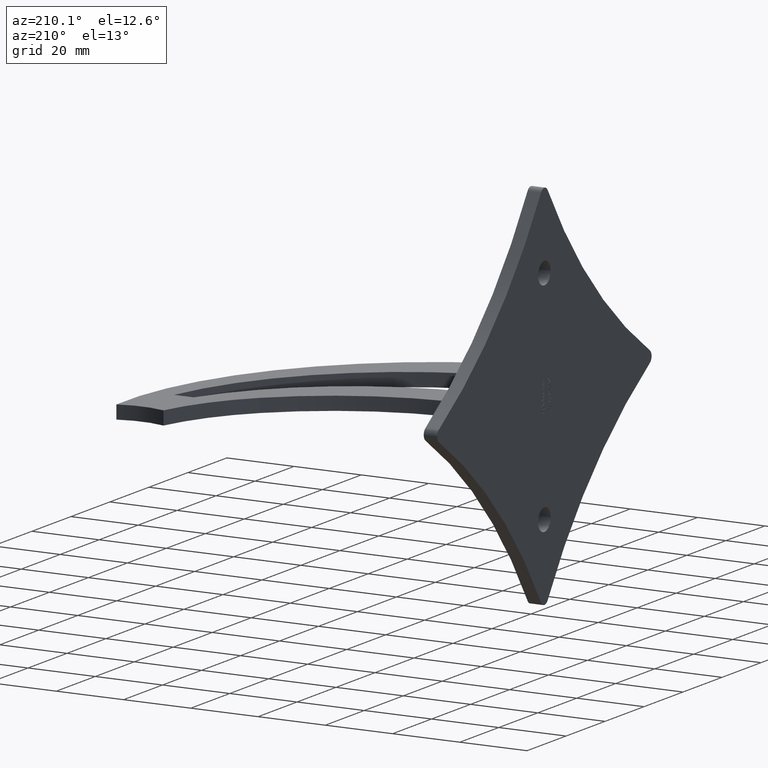
[diagram: clean part render]
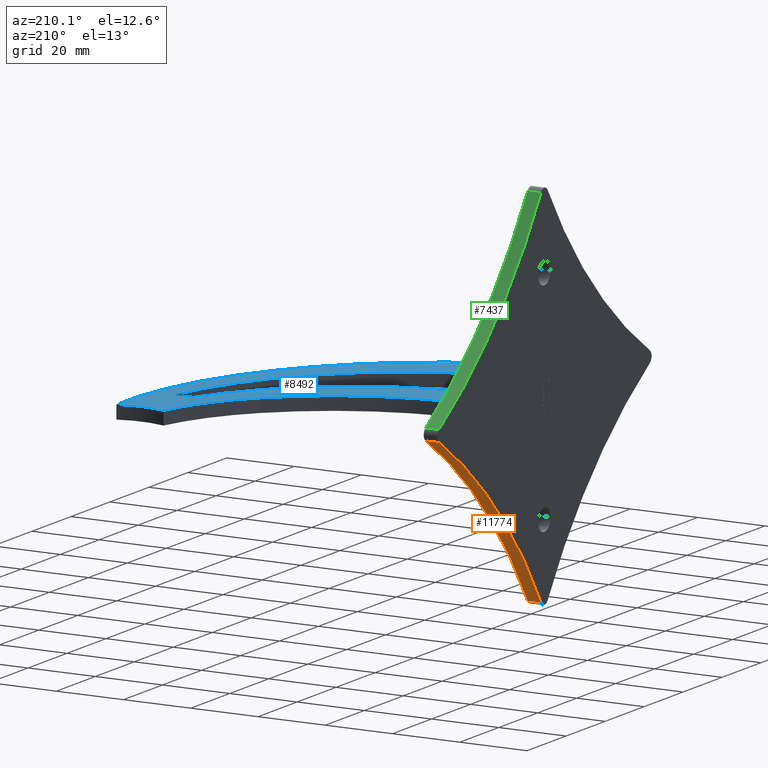
[diagram: same view with three faces highlighted in distinct colors, each labeled with its STEP entity id]
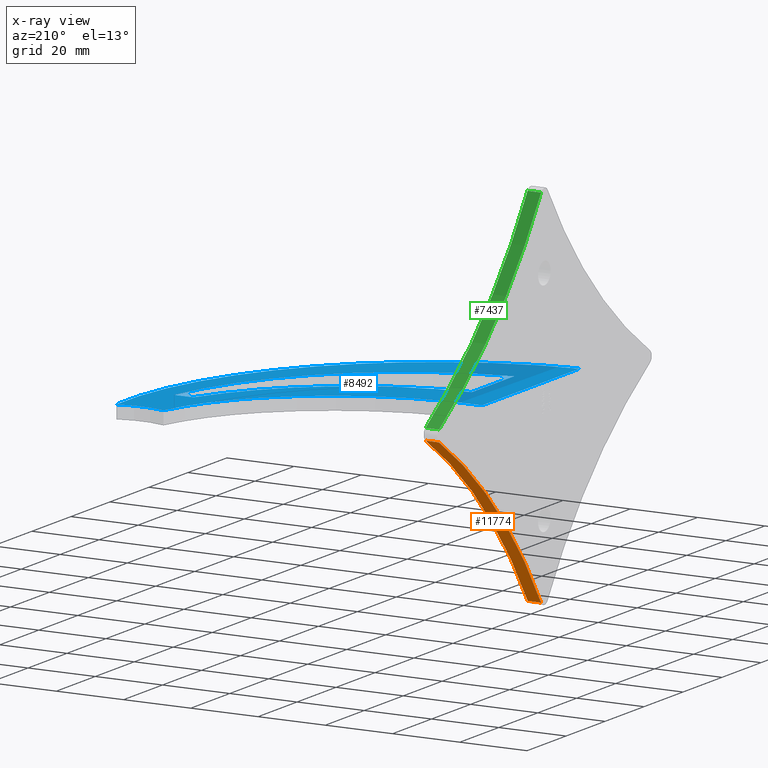
[diagram: x-ray of the same camera — body ghosted, the three highlighted faces saturated]
A machine part, auxiliary view with three faces highlighted in distinct colors.
The next image is the same camera in x-ray (body ghosted, the three faces saturated) — at least one of them is partly hidden behind the body in this view.
Their STEP definitions:

[orange] entity #11774 — the highlighted cylindrical surface (partial cylindrical patch) has radius 160 mm, axis along (1, -0, -0).
#765 = ORIENTED_EDGE ( 'NONE', *, *, #5999, .T. ) ;
#916 = DIRECTION ( 'NONE',  ( 1.000000000000000000, -7.993605777301128353E-14, -0.000000000000000000 ) ) ;
#932 = DIRECTION ( 'NONE',  ( 7.993605777301129615E-14, 1.000000000000000000, 0.000000000000000000 ) ) ;
#959 = VECTOR ( 'NONE', #10186, 1000.000000000000000 ) ;
#985 = CARTESIAN_POINT ( 'NONE',  ( -3.999999999999864109, 1.703011507301944727, -54.04869051964732307 ) ) ;
#1049 = VERTEX_POINT ( 'NONE', #10015 ) ;
#1844 = DIRECTION ( 'NONE',  ( 7.993822617735624192E-14, 1.000000000000000000, 0.000000000000000000 ) ) ;
#2671 = CARTESIAN_POINT ( 'NONE',  ( 1.102669412509715990E-11, 137.9439320914333109, -137.9439320914332825 ) ) ;
#2919 = FACE_OUTER_BOUND ( 'NONE', #7805, .T. ) ;
#3168 = AXIS2_PLACEMENT_3D ( 'NONE', #7307, #7387, #1844 ) ;
#3527 = CARTESIAN_POINT ( 'NONE',  ( -3.999999999988973265, 137.9439320914336520, -137.9439320914332825 ) ) ;
#3616 = CARTESIAN_POINT ( 'NONE',  ( 1.361320262357657079E-13, 1.703011507301624983, -54.04869051964732307 ) ) ;
#3651 = VERTEX_POINT ( 'NONE', #3616 ) ;
#3871 = AXIS2_PLACEMENT_3D ( 'NONE', #3527, #916, #7288 ) ;
#4072 = CIRCLE ( 'NONE', #4248, 160.0000000000000000 ) ;
#4248 = AXIS2_PLACEMENT_3D ( 'NONE', #2671, #6248, #932 ) ;
#4780 = CYLINDRICAL_SURFACE ( 'NONE', #3168, 160.0000000000000000 ) ;
#4799 = LINE ( 'NONE', #10934, #5643 ) ;
#5604 = DIRECTION ( 'NONE',  ( 1.000000000000000000, -7.993605777301128353E-14, -0.000000000000000000 ) ) ;
#5643 = VECTOR ( 'NONE', #5604, 1000.000000000000000 ) ;
#5999 = EDGE_CURVE ( 'NONE', #11205, #7626, #4799, .T. ) ;
#6000 = ORIENTED_EDGE ( 'NONE', *, *, #10456, .F. ) ;
#6248 = DIRECTION ( 'NONE',  ( 1.000000000000000000, -7.993605777301128353E-14, -0.000000000000000000 ) ) ;
#7120 = CARTESIAN_POINT ( 'NONE',  ( -3.999999999995679900, 54.04869051964761439, -1.703011507301621652 ) ) ;
#7288 = DIRECTION ( 'NONE',  ( 7.993822617735624192E-14, 1.000000000000000000, 0.000000000000000000 ) ) ;
#7307 = CARTESIAN_POINT ( 'NONE',  ( -3.999999999988973265, 137.9439320914336520, -137.9439320914332825 ) ) ;
#7387 = DIRECTION ( 'NONE',  ( 1.000000000000000000, -7.993605777301128353E-14, -0.000000000000000000 ) ) ;
#7626 = VERTEX_POINT ( 'NONE', #11249 ) ;
#7757 = ORIENTED_EDGE ( 'NONE', *, *, #10804, .T. ) ;
#7805 = EDGE_LOOP ( 'NONE', ( #7757, #6000, #10035, #765 ) ) ;
#9241 = EDGE_CURVE ( 'NONE', #11205, #1049, #9643, .T. ) ;
#9643 = CIRCLE ( 'NONE', #3871, 160.0000000000000000 ) ;
#10015 = CARTESIAN_POINT ( 'NONE',  ( -3.999999999999864109, 1.703011507301944727, -54.04869051964732307 ) ) ;
#10035 = ORIENTED_EDGE ( 'NONE', *, *, #9241, .F. ) ;
#10186 = DIRECTION ( 'NONE',  ( 1.000000000000000000, -7.993605777301128353E-14, -0.000000000000000000 ) ) ;
#10456 = EDGE_CURVE ( 'NONE', #1049, #3651, #11086, .T. ) ;
#10804 = EDGE_CURVE ( 'NONE', #7626, #3651, #4072, .T. ) ;
#10934 = CARTESIAN_POINT ( 'NONE',  ( -3.999999999995679900, 54.04869051964761439, -1.703011507301621652 ) ) ;
#11086 = LINE ( 'NONE', #985, #959 ) ;
#11205 = VERTEX_POINT ( 'NONE', #7120 ) ;
#11249 = CARTESIAN_POINT ( 'NONE',  ( 4.320439247934134280E-12, 54.04869051964729465, -1.703011507301621652 ) ) ;
#11774 = ADVANCED_FACE ( 'NONE', ( #2919 ), #4780, .F. ) ;

[blue] entity #8492 — the highlighted planar face has unit normal (-0, 0, 1).
#335 = VERTEX_POINT ( 'NONE', #7959 ) ;
#374 = PLANE ( 'NONE',  #9420 ) ;
#522 = EDGE_CURVE ( 'NONE', #11357, #335, #5120, .T. ) ;
#625 = DIRECTION ( 'NONE',  ( 1.000000000000000000, 0.000000000000000000, 0.000000000000000000 ) ) ;
#1073 = VERTEX_POINT ( 'NONE', #11623 ) ;
#1138 = CIRCLE ( 'NONE', #3547, 78.50000000000000000 ) ;
#1441 = CARTESIAN_POINT ( 'NONE',  ( 69.01433309437241803, 54.00000000000000711, 2.000000000000000000 ) ) ;
#1606 = ORIENTED_EDGE ( 'NONE', *, *, #4290, .F. ) ;
#1714 = ORIENTED_EDGE ( 'NONE', *, *, #2270, .F. ) ;
#1971 = FACE_OUTER_BOUND ( 'NONE', #10940, .T. ) ;
#2165 = EDGE_CURVE ( 'NONE', #9766, #10109, #10559, .T. ) ;
#2198 = CARTESIAN_POINT ( 'NONE',  ( 10.09999999999999787, 12.90000000000000391, 2.000000000000000000 ) ) ;
#2255 = DIRECTION ( 'NONE',  ( 1.000000000000000000, 0.000000000000000000, 0.000000000000000000 ) ) ;
#2270 = EDGE_CURVE ( 'NONE', #2411, #10109, #9123, .T. ) ;
#2411 = VERTEX_POINT ( 'NONE', #10640 ) ;
#2727 = VERTEX_POINT ( 'NONE', #2198 ) ;
#2964 = EDGE_CURVE ( 'NONE', #10892, #1073, #1138, .T. ) ;
#3032 = DIRECTION ( 'NONE',  ( -0.000000000000000000, 0.000000000000000000, 1.000000000000000000 ) ) ;
#3046 = ORIENTED_EDGE ( 'NONE', *, *, #6320, .T. ) ;
#3054 = DIRECTION ( 'NONE',  ( -0.000000000000000000, 0.000000000000000000, 1.000000000000000000 ) ) ;
#3180 = DIRECTION ( 'NONE',  ( 1.000000000000000000, 0.000000000000000000, 0.000000000000000000 ) ) ;
#3307 = AXIS2_PLACEMENT_3D ( 'NONE', #11410, #11569, #2255 ) ;
#3309 = ORIENTED_EDGE ( 'NONE', *, *, #522, .F. ) ;
#3342 = EDGE_LOOP ( 'NONE', ( #3046, #9430, #9852, #10140 ) ) ;
#3547 = AXIS2_PLACEMENT_3D ( 'NONE', #8010, #8941, #9817 ) ;
#3745 = DIRECTION ( 'NONE',  ( 1.000000000000000000, 0.000000000000000000, 0.000000000000000000 ) ) ;
#3832 = DIRECTION ( 'NONE',  ( -0.000000000000000000, 0.000000000000000000, 1.000000000000000000 ) ) ;
#3917 = CARTESIAN_POINT ( 'NONE',  ( -1.998139615876600116E-12, -24.99999999999961986, 2.000000000000000000 ) ) ;
#4056 = AXIS2_PLACEMENT_3D ( 'NONE', #10217, #3832, #8335 ) ;
#4097 = LINE ( 'NONE', #11374, #9506 ) ;
#4115 = CARTESIAN_POINT ( 'NONE',  ( 81.99999999999997158, 71.18900302333739205, 2.000000000000000000 ) ) ;
#4290 = EDGE_CURVE ( 'NONE', #9766, #11357, #11865, .T. ) ;
#4341 = EDGE_CURVE ( 'NONE', #5218, #1073, #4097, .T. ) ;
#4392 = AXIS2_PLACEMENT_3D ( 'NONE', #4959, #3054, #11367 ) ;
#4665 = CARTESIAN_POINT ( 'NONE',  ( 1.998587412948803633E-12, 24.99999999999992539, 2.000000000000000000 ) ) ;
#4761 = DIRECTION ( 'NONE',  ( 0.000000000000000000, 1.000000000000000000, -0.000000000000000000 ) ) ;
#4959 = CARTESIAN_POINT ( 'NONE',  ( -9.878794471127335441, 66.46807869304582539, 2.000000000000000000 ) ) ;
#5120 = CIRCLE ( 'NONE', #4056, 69.99999999999997158 ) ;
#5218 = VERTEX_POINT ( 'NONE', #1441 ) ;
#6081 = EDGE_CURVE ( 'NONE', #10892, #2727, #8232, .T. ) ;
#6320 = EDGE_CURVE ( 'NONE', #2727, #5218, #7506, .T. ) ;
#6621 = EDGE_CURVE ( 'NONE', #335, #2411, #8218, .T. ) ;
#6876 = DIRECTION ( 'NONE',  ( 1.000000000000000000, 0.000000000000000000, 0.000000000000000000 ) ) ;
#7143 = ORIENTED_EDGE ( 'NONE', *, *, #6621, .F. ) ;
#7260 = CARTESIAN_POINT ( 'NONE',  ( 5.180452133363093736, 82.72691493104838401, 2.000000000000000000 ) ) ;
#7316 = AXIS2_PLACEMENT_3D ( 'NONE', #9699, #11562, #625 ) ;
#7498 = CARTESIAN_POINT ( 'NONE',  ( 1.110223024625135740E-12, -3.944304526105082560E-26, 2.000000000000000000 ) ) ;
#7506 = CIRCLE ( 'NONE', #7532, 69.99999999999998579 ) ;
#7532 = AXIS2_PLACEMENT_3D ( 'NONE', #7260, #8252, #3745 ) ;
#7959 = CARTESIAN_POINT ( 'NONE',  ( 53.97457268643530881, 45.99999999999996447, 2.000000000000000000 ) ) ;
#8010 = CARTESIAN_POINT ( 'NONE',  ( -2.274320155918185815, 68.81855391245915143, 2.000000000000000000 ) ) ;
#8082 = CARTESIAN_POINT ( 'NONE',  ( 10.09999999999999964, -8.700000000000001066, 2.000000000000000000 ) ) ;
#8218 = CIRCLE ( 'NONE', #7316, 55.00000000000000711 ) ;
#8232 = LINE ( 'NONE', #10148, #9488 ) ;
#8252 = DIRECTION ( 'NONE',  ( -0.000000000000000000, 0.000000000000000000, 1.000000000000000000 ) ) ;
#8335 = DIRECTION ( 'NONE',  ( 1.000000000000000000, 0.000000000000000000, 0.000000000000000000 ) ) ;
#8492 = ADVANCED_FACE ( 'NONE', ( #9089, #1971 ), #374, .T. ) ;
#8941 = DIRECTION ( 'NONE',  ( -0.000000000000000000, 0.000000000000000000, 1.000000000000000000 ) ) ;
#9089 = FACE_BOUND ( 'NONE', #3342, .T. ) ;
#9123 = CIRCLE ( 'NONE', #3307, 21.19999999999999574 ) ;
#9378 = VECTOR ( 'NONE', #11183, 1000.000000000000000 ) ;
#9420 = AXIS2_PLACEMENT_3D ( 'NONE', #9517, #3032, #3180 ) ;
#9430 = ORIENTED_EDGE ( 'NONE', *, *, #4341, .T. ) ;
#9488 = VECTOR ( 'NONE', #4761, 1000.000000000000000 ) ;
#9506 = VECTOR ( 'NONE', #6876, 1000.000000000000000 ) ;
#9517 = CARTESIAN_POINT ( 'NONE',  ( 0.000000000000000000, 0.000000000000000000, 2.000000000000000000 ) ) ;
#9699 = CARTESIAN_POINT ( 'NONE',  ( 14.61404249810564338, 84.41547426875771976, 2.000000000000000000 ) ) ;
#9766 = VERTEX_POINT ( 'NONE', #3917 ) ;
#9817 = DIRECTION ( 'NONE',  ( 1.000000000000000000, 0.000000000000000000, 0.000000000000000000 ) ) ;
#9852 = ORIENTED_EDGE ( 'NONE', *, *, #2964, .F. ) ;
#10109 = VERTEX_POINT ( 'NONE', #4115 ) ;
#10140 = ORIENTED_EDGE ( 'NONE', *, *, #6081, .T. ) ;
#10148 = CARTESIAN_POINT ( 'NONE',  ( 10.09999999999999964, 0.000000000000000000, 2.000000000000000000 ) ) ;
#10217 = CARTESIAN_POINT ( 'NONE',  ( 3.879352446742994065, 94.89242179660072907, 2.000000000000000000 ) ) ;
#10232 = ORIENTED_EDGE ( 'NONE', *, *, #2165, .T. ) ;
#10559 = CIRCLE ( 'NONE', #4392, 91.99999999999938893 ) ;
#10640 = CARTESIAN_POINT ( 'NONE',  ( 68.00000000000000000, 71.18900302333739205, 2.000000000000000000 ) ) ;
#10892 = VERTEX_POINT ( 'NONE', #8082 ) ;
#10940 = EDGE_LOOP ( 'NONE', ( #3309, #1606, #10232, #1714, #7143 ) ) ;
#11183 = DIRECTION ( 'NONE',  ( 3.552713678800588651E-14, 1.000000000000000000, 0.000000000000000000 ) ) ;
#11357 = VERTEX_POINT ( 'NONE', #4665 ) ;
#11367 = DIRECTION ( 'NONE',  ( 1.000000000000000000, 0.000000000000000000, 0.000000000000000000 ) ) ;
#11374 = CARTESIAN_POINT ( 'NONE',  ( 0.000000000000000000, 54.00000000000000711, 2.000000000000000000 ) ) ;
#11410 = CARTESIAN_POINT ( 'NONE',  ( 74.99999999999998579, 91.20000000000000284, 2.000000000000000000 ) ) ;
#11562 = DIRECTION ( 'NONE',  ( -0.000000000000000000, 0.000000000000000000, 1.000000000000000000 ) ) ;
#11569 = DIRECTION ( 'NONE',  ( -0.000000000000000000, 0.000000000000000000, 1.000000000000000000 ) ) ;
#11623 = CARTESIAN_POINT ( 'NONE',  ( 74.81433309437242940, 54.00000000000000711, 2.000000000000000000 ) ) ;
#11865 = LINE ( 'NONE', #7498, #9378 ) ;

[green] entity #7437 — the highlighted cylindrical surface (partial cylindrical patch) has radius 160 mm, axis along (1, -0, -0).
#95 = VERTEX_POINT ( 'NONE', #7349 ) ;
#217 = CIRCLE ( 'NONE', #8339, 159.9999999999999716 ) ;
#303 = DIRECTION ( 'NONE',  ( 1.000000000000000000, -7.993605777301128353E-14, -0.000000000000000000 ) ) ;
#1167 = EDGE_CURVE ( 'NONE', #10757, #95, #217, .T. ) ;
#1626 = DIRECTION ( 'NONE',  ( 1.000000000000000000, -7.993605777301128353E-14, -0.000000000000000000 ) ) ;
#1931 = DIRECTION ( 'NONE',  ( 7.993822617735625454E-14, 1.000000000000000000, 0.000000000000000000 ) ) ;
#2001 = CARTESIAN_POINT ( 'NONE',  ( -3.999999999995679900, 54.04869051964760018, 1.703011507301644301 ) ) ;
#2164 = ORIENTED_EDGE ( 'NONE', *, *, #1167, .T. ) ;
#2323 = VERTEX_POINT ( 'NONE', #10520 ) ;
#2715 = AXIS2_PLACEMENT_3D ( 'NONE', #11035, #5544, #1931 ) ;
#3065 = EDGE_CURVE ( 'NONE', #10016, #10757, #3251, .T. ) ;
#3251 = LINE ( 'NONE', #8993, #8826 ) ;
#3418 = CARTESIAN_POINT ( 'NONE',  ( 1.361320262357661371E-13, 1.703011507301621652, 54.04869051964736570 ) ) ;
#3957 = DIRECTION ( 'NONE',  ( 7.993605777301129615E-14, 1.000000000000000000, 0.000000000000000000 ) ) ;
#4625 = EDGE_LOOP ( 'NONE', ( #2164, #4791, #5268, #6832 ) ) ;
#4791 = ORIENTED_EDGE ( 'NONE', *, *, #10600, .F. ) ;
#5049 = LINE ( 'NONE', #2001, #9775 ) ;
#5239 = CARTESIAN_POINT ( 'NONE',  ( -3.999999999988973265, 137.9439320914336804, 137.9439320914332825 ) ) ;
#5268 = ORIENTED_EDGE ( 'NONE', *, *, #9657, .F. ) ;
#5530 = AXIS2_PLACEMENT_3D ( 'NONE', #5239, #1626, #10651 ) ;
#5544 = DIRECTION ( 'NONE',  ( 1.000000000000000000, -7.993605777301128353E-14, -0.000000000000000000 ) ) ;
#5933 = CIRCLE ( 'NONE', #2715, 159.9999999999999716 ) ;
#6473 = CARTESIAN_POINT ( 'NONE',  ( -3.999999999999864109, 1.703011507301941396, 54.04869051964736570 ) ) ;
#6832 = ORIENTED_EDGE ( 'NONE', *, *, #3065, .T. ) ;
#7349 = CARTESIAN_POINT ( 'NONE',  ( 4.320439247934132664E-12, 54.04869051964728044, 1.703011507301644301 ) ) ;
#7408 = CYLINDRICAL_SURFACE ( 'NONE', #5530, 159.9999999999999716 ) ;
#7437 = ADVANCED_FACE ( 'NONE', ( #9669 ), #7408, .F. ) ;
#7576 = DIRECTION ( 'NONE',  ( 1.000000000000000000, -7.993605777301128353E-14, -0.000000000000000000 ) ) ;
#8339 = AXIS2_PLACEMENT_3D ( 'NONE', #11197, #303, #3957 ) ;
#8826 = VECTOR ( 'NONE', #9916, 1000.000000000000000 ) ;
#8993 = CARTESIAN_POINT ( 'NONE',  ( -3.999999999999864109, 1.703011507301941396, 54.04869051964736570 ) ) ;
#9657 = EDGE_CURVE ( 'NONE', #10016, #2323, #5933, .T. ) ;
#9669 = FACE_OUTER_BOUND ( 'NONE', #4625, .T. ) ;
#9775 = VECTOR ( 'NONE', #7576, 1000.000000000000000 ) ;
#9916 = DIRECTION ( 'NONE',  ( 1.000000000000000000, -7.993605777301128353E-14, -0.000000000000000000 ) ) ;
#10016 = VERTEX_POINT ( 'NONE', #6473 ) ;
#10520 = CARTESIAN_POINT ( 'NONE',  ( -3.999999999995679900, 54.04869051964760018, 1.703011507301644301 ) ) ;
#10600 = EDGE_CURVE ( 'NONE', #2323, #95, #5049, .T. ) ;
#10651 = DIRECTION ( 'NONE',  ( 7.993822617735625454E-14, 1.000000000000000000, 0.000000000000000000 ) ) ;
#10757 = VERTEX_POINT ( 'NONE', #3418 ) ;
#11035 = CARTESIAN_POINT ( 'NONE',  ( -3.999999999988973265, 137.9439320914336804, 137.9439320914332825 ) ) ;
#11197 = CARTESIAN_POINT ( 'NONE',  ( 1.102669412509716151E-11, 137.9439320914333393, 137.9439320914332825 ) ) ;